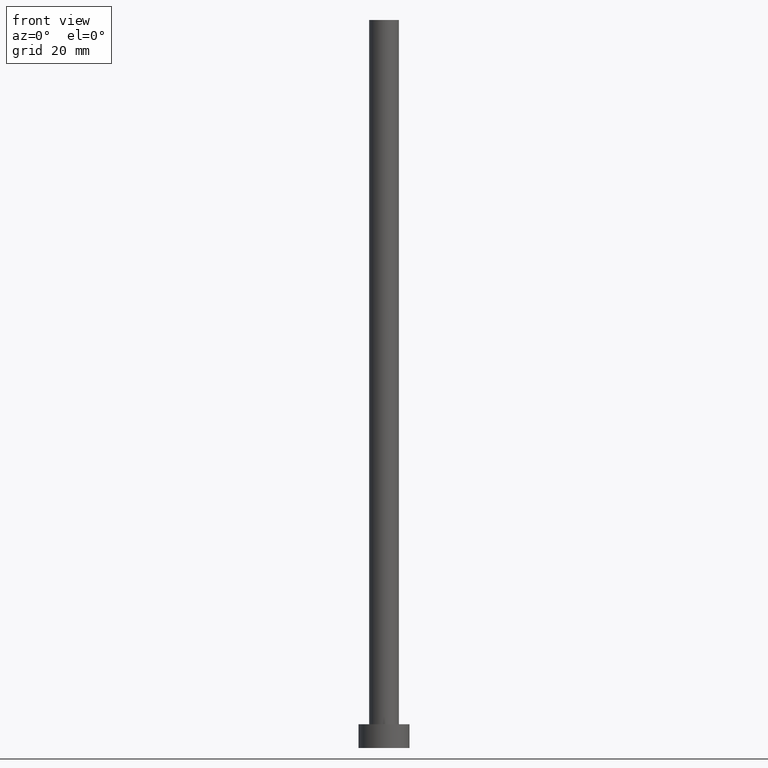
[diagram: clean part render]
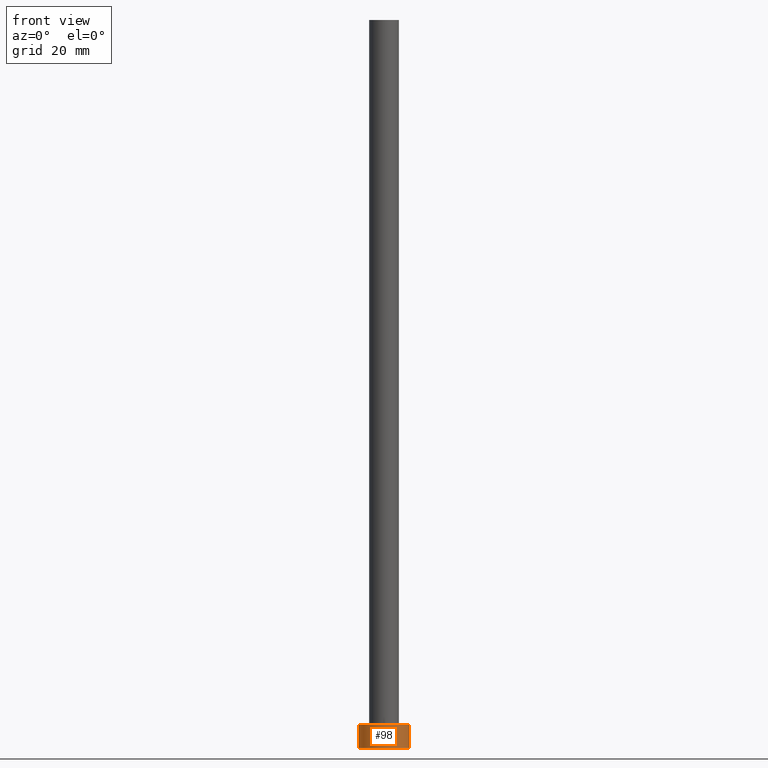
[diagram: same view with one face highlighted and labeled with its STEP entity id]
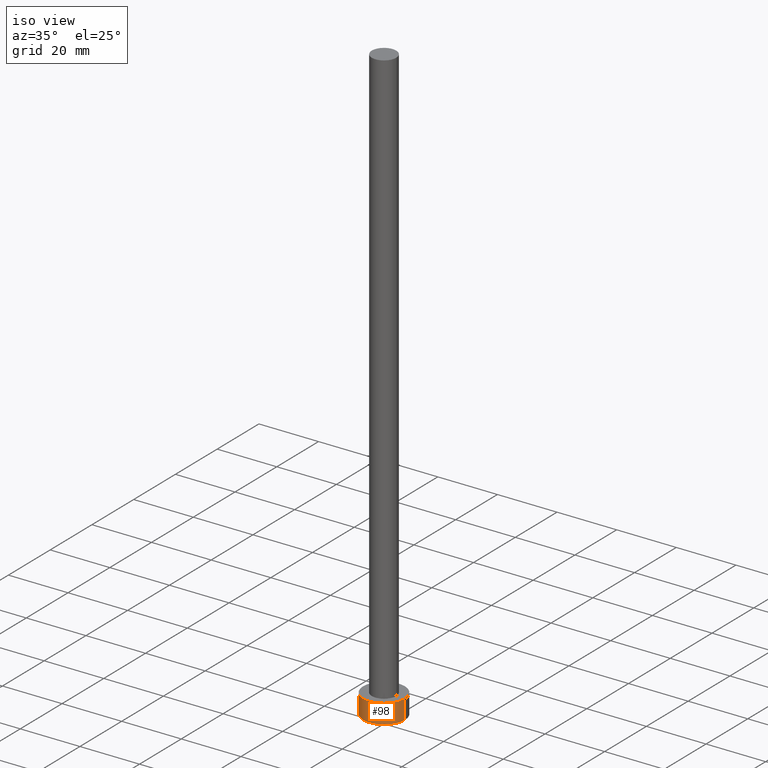
[diagram: same view with one face highlighted and labeled with its STEP entity id]
A machine part, front view. The second image highlights one B-rep face of the part: STEP entity #98.
A second angle (iso view) of the same face is appended — the face is thin or edge-on in the first view.
In plain terms, the highlighted cylindrical surface (edge-blend (fillet) strip) has radius 7 mm, axis along (-0, -0, -1).
Its self-contained STEP definition (entity closure, byte-faithful):
#6 = AXIS2_PLACEMENT_3D ( 'NONE', #184, #169, #248 ) ;
#15 = EDGE_CURVE ( 'NONE', #68, #163, #28, .T. ) ;
#21 = VECTOR ( 'NONE', #250, 1000.000000000000000 ) ;
#28 = LINE ( 'NONE', #143, #21 ) ;
#34 = CARTESIAN_POINT ( 'NONE',  ( -7.000000000000000000, 0.000000000000000000, 0.000000000000000000 ) ) ;
#42 = CIRCLE ( 'NONE', #126, 7.000000000000000000 ) ;
#53 = LINE ( 'NONE', #132, #60 ) ;
#54 = EDGE_CURVE ( 'NONE', #163, #181, #118, .T. ) ;
#60 = VECTOR ( 'NONE', #185, 1000.000000000000000 ) ;
#67 = EDGE_CURVE ( 'NONE', #244, #181, #53, .T. ) ;
#68 = VERTEX_POINT ( 'NONE', #203 ) ;
#78 = CYLINDRICAL_SURFACE ( 'NONE', #221, 7.000000000000000000 ) ;
#86 = ORIENTED_EDGE ( 'NONE', *, *, #15, .T. ) ;
#88 = EDGE_LOOP ( 'NONE', ( #224, #129, #86, #167 ) ) ;
#94 = EDGE_CURVE ( 'NONE', #68, #244, #42, .T. ) ;
#98 = ADVANCED_FACE ( 'NONE', ( #117 ), #78, .T. ) ;
#117 = FACE_OUTER_BOUND ( 'NONE', #88, .T. ) ;
#118 = CIRCLE ( 'NONE', #6, 7.000000000000000000 ) ;
#126 = AXIS2_PLACEMENT_3D ( 'NONE', #234, #205, #192 ) ;
#129 = ORIENTED_EDGE ( 'NONE', *, *, #94, .F. ) ;
#132 = CARTESIAN_POINT ( 'NONE',  ( 7.000000000000000000, 8.572527594031471218E-16, 6.500000000000000000 ) ) ;
#143 = CARTESIAN_POINT ( 'NONE',  ( -7.000000000000000000, 0.000000000000000000, 6.500000000000000000 ) ) ;
#151 = CARTESIAN_POINT ( 'NONE',  ( 0.000000000000000000, 0.000000000000000000, 6.500000000000000000 ) ) ;
#155 = DIRECTION ( 'NONE',  ( -1.000000000000000000, 0.000000000000000000, 0.000000000000000000 ) ) ;
#163 = VERTEX_POINT ( 'NONE', #34 ) ;
#167 = ORIENTED_EDGE ( 'NONE', *, *, #54, .T. ) ;
#169 = DIRECTION ( 'NONE',  ( 0.000000000000000000, 0.000000000000000000, 1.000000000000000000 ) ) ;
#176 = CARTESIAN_POINT ( 'NONE',  ( 7.000000000000000000, 8.572527594031471218E-16, 6.500000000000000000 ) ) ;
#181 = VERTEX_POINT ( 'NONE', #204 ) ;
#184 = CARTESIAN_POINT ( 'NONE',  ( 0.000000000000000000, 0.000000000000000000, 0.000000000000000000 ) ) ;
#185 = DIRECTION ( 'NONE',  ( -0.000000000000000000, -0.000000000000000000, -1.000000000000000000 ) ) ;
#189 = DIRECTION ( 'NONE',  ( -0.000000000000000000, -0.000000000000000000, -1.000000000000000000 ) ) ;
#192 = DIRECTION ( 'NONE',  ( 1.000000000000000000, 0.000000000000000000, 0.000000000000000000 ) ) ;
#203 = CARTESIAN_POINT ( 'NONE',  ( -7.000000000000000000, 0.000000000000000000, 6.500000000000000000 ) ) ;
#204 = CARTESIAN_POINT ( 'NONE',  ( 7.000000000000000000, 8.572527594031471218E-16, 0.000000000000000000 ) ) ;
#205 = DIRECTION ( 'NONE',  ( 0.000000000000000000, 0.000000000000000000, 1.000000000000000000 ) ) ;
#221 = AXIS2_PLACEMENT_3D ( 'NONE', #151, #189, #155 ) ;
#224 = ORIENTED_EDGE ( 'NONE', *, *, #67, .F. ) ;
#234 = CARTESIAN_POINT ( 'NONE',  ( 0.000000000000000000, 0.000000000000000000, 6.500000000000000000 ) ) ;
#244 = VERTEX_POINT ( 'NONE', #176 ) ;
#248 = DIRECTION ( 'NONE',  ( 1.000000000000000000, 0.000000000000000000, 0.000000000000000000 ) ) ;
#250 = DIRECTION ( 'NONE',  ( -0.000000000000000000, -0.000000000000000000, -1.000000000000000000 ) ) ;